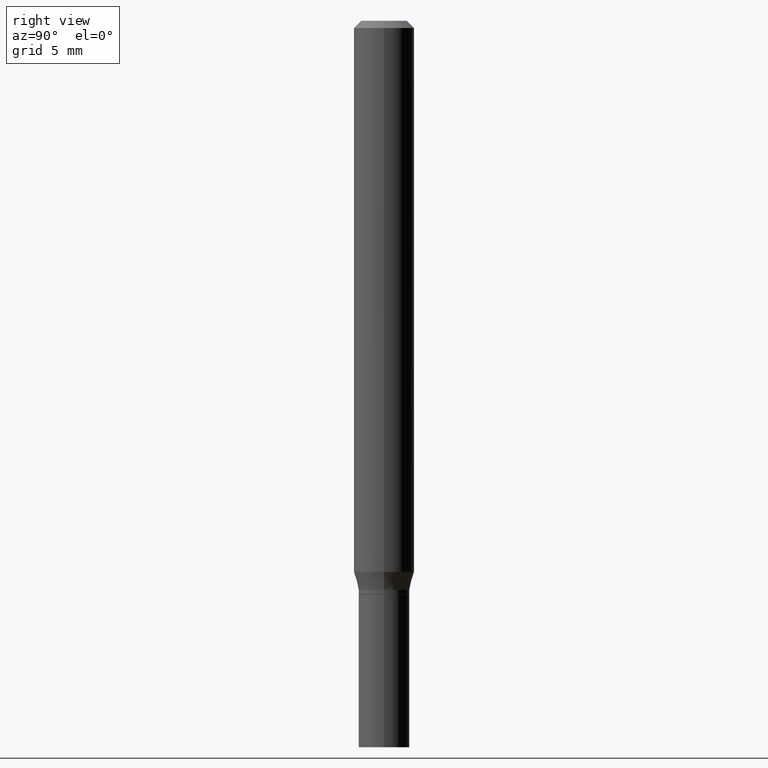
[diagram: clean part render]
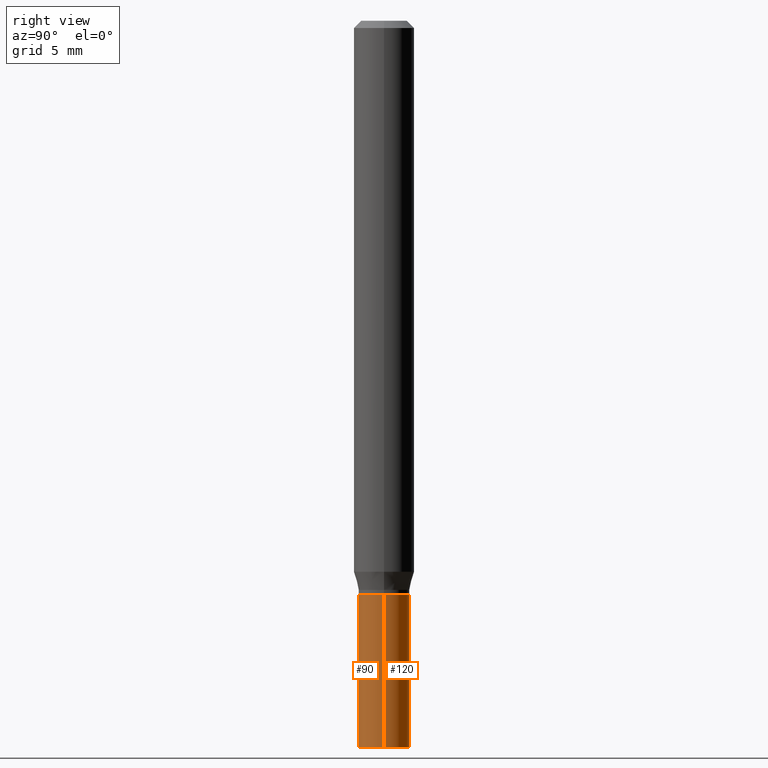
[diagram: same view with one multi-face feature highlighted, each face labeled with its STEP entity id]
A machine part, right view. The highlighted faces form ONE feature: a constant-radius fillet chain: 2 tangent blend faces with common blend radius 1.3335 mm. The faces share edges in the B-rep.
Their STEP definitions:
[1] entity #120 (Cylinder):
#2 = LINE ( 'NONE', #41, #443 ) ;
#15 = VERTEX_POINT ( 'NONE', #204 ) ;
#21 = CARTESIAN_POINT ( 'NONE',  ( 0.05249999999999999806, -5.603827548843247337E-15, -1.500000000000000222 ) ) ;
#23 = VERTEX_POINT ( 'NONE', #21 ) ;
#41 = CARTESIAN_POINT ( 'NONE',  ( -0.05249999999999999806, 3.730349362740525838E-16, -2.582440922383825311E-30 ) ) ;
#56 = VERTEX_POINT ( 'NONE', #171 ) ;
#64 = CARTESIAN_POINT ( 'NONE',  ( 0.000000000000000000, 0.000000000000000000, 0.000000000000000000 ) ) ;
#65 = DIRECTION ( 'NONE',  ( 1.000000000000000000, -6.982962677686268288E-15, 0.000000000000000000 ) ) ;
#66 = CARTESIAN_POINT ( 'NONE',  ( 0.05249999999999999806, -3.666055405785289629E-16, 2.559992807292866011E-30 ) ) ;
#89 = EDGE_CURVE ( 'NONE', #23, #15, #359, .T. ) ;
#92 = EDGE_CURVE ( 'NONE', #113, #56, #2, .T. ) ;
#98 = CARTESIAN_POINT ( 'NONE',  ( -0.05249999999999999806, -4.314278761122870719E-15, -1.500000000000000222 ) ) ;
#113 = VERTEX_POINT ( 'NONE', #98 ) ;
#114 = ORIENTED_EDGE ( 'NONE', *, *, #89, .F. ) ;
#120 = ADVANCED_FACE ( 'NONE', ( #217 ), #398, .T. ) ;
#122 = ORIENTED_EDGE ( 'NONE', *, *, #394, .F. ) ;
#134 = CARTESIAN_POINT ( 'NONE',  ( 2.897880535329387383E-29, -4.137405386529128330E-15, -1.185000000000000275 ) ) ;
#136 = CARTESIAN_POINT ( 'NONE',  ( 3.668203209277704895E-29, -5.237222008264718177E-15, -1.500000000000000222 ) ) ;
#146 = CIRCLE ( 'NONE', #352, 0.05249999999999999806 ) ;
#171 = CARTESIAN_POINT ( 'NONE',  ( -0.05249999999999999806, -4.314278761122870719E-15, -1.185000000000000275 ) ) ;
#188 = EDGE_LOOP ( 'NONE', ( #194, #372, #122, #114 ) ) ;
#194 = ORIENTED_EDGE ( 'NONE', *, *, #235, .T. ) ;
#204 = CARTESIAN_POINT ( 'NONE',  ( 0.05249999999999999806, -4.504010927107657490E-15, -1.185000000000000275 ) ) ;
#212 = DIRECTION ( 'NONE',  ( -2.445468806185136877E-29, 3.491481338843145188E-15, 1.000000000000000000 ) ) ;
#217 = FACE_OUTER_BOUND ( 'NONE', #188, .T. ) ;
#220 = DIRECTION ( 'NONE',  ( -2.445468806185136877E-29, 3.491481338843145188E-15, 1.000000000000000000 ) ) ;
#235 = EDGE_CURVE ( 'NONE', #23, #113, #146, .T. ) ;
#259 = DIRECTION ( 'NONE',  ( 1.000000000000000000, -6.982962677686268288E-15, 0.000000000000000000 ) ) ;
#279 = DIRECTION ( 'NONE',  ( -2.445468806185136597E-29, 3.491481338843145583E-15, 1.000000000000000000 ) ) ;
#286 = DIRECTION ( 'NONE',  ( -2.445468806185136597E-29, 3.491481338843145583E-15, 1.000000000000000000 ) ) ;
#350 = AXIS2_PLACEMENT_3D ( 'NONE', #64, #356, #432 ) ;
#352 = AXIS2_PLACEMENT_3D ( 'NONE', #136, #286, #259 ) ;
#356 = DIRECTION ( 'NONE',  ( -2.445468806185136597E-29, 3.491481338843145583E-15, 1.000000000000000000 ) ) ;
#359 = LINE ( 'NONE', #66, #365 ) ;
#365 = VECTOR ( 'NONE', #220, 39.37007874015748143 ) ;
#372 = ORIENTED_EDGE ( 'NONE', *, *, #92, .T. ) ;
#388 = CIRCLE ( 'NONE', #458, 0.05249999999999999806 ) ;
#394 = EDGE_CURVE ( 'NONE', #15, #56, #388, .T. ) ;
#398 = CYLINDRICAL_SURFACE ( 'NONE', #350, 0.05249999999999999806 ) ;
#432 = DIRECTION ( 'NONE',  ( 1.000000000000000000, -6.982962677686265922E-15, 4.876176775795935232E-29 ) ) ;
#443 = VECTOR ( 'NONE', #212, 39.37007874015748143 ) ;
#458 = AXIS2_PLACEMENT_3D ( 'NONE', #134, #279, #65 ) ;
[2] entity #90 (Cylinder):
#2 = LINE ( 'NONE', #41, #443 ) ;
#6 = FACE_OUTER_BOUND ( 'NONE', #412, .T. ) ;
#15 = VERTEX_POINT ( 'NONE', #204 ) ;
#16 = ORIENTED_EDGE ( 'NONE', *, *, #150, .T. ) ;
#21 = CARTESIAN_POINT ( 'NONE',  ( 0.05249999999999999806, -5.603827548843247337E-15, -1.500000000000000222 ) ) ;
#23 = VERTEX_POINT ( 'NONE', #21 ) ;
#31 = DIRECTION ( 'NONE',  ( 1.000000000000000000, -6.982962677686265922E-15, 4.876176775795935232E-29 ) ) ;
#41 = CARTESIAN_POINT ( 'NONE',  ( -0.05249999999999999806, 3.730349362740525838E-16, -2.582440922383825311E-30 ) ) ;
#56 = VERTEX_POINT ( 'NONE', #171 ) ;
#66 = CARTESIAN_POINT ( 'NONE',  ( 0.05249999999999999806, -3.666055405785289629E-16, 2.559992807292866011E-30 ) ) ;
#89 = EDGE_CURVE ( 'NONE', #23, #15, #359, .T. ) ;
#90 = ADVANCED_FACE ( 'NONE', ( #6 ), #351, .T. ) ;
#92 = EDGE_CURVE ( 'NONE', #113, #56, #2, .T. ) ;
#98 = CARTESIAN_POINT ( 'NONE',  ( -0.05249999999999999806, -4.314278761122870719E-15, -1.500000000000000222 ) ) ;
#101 = CARTESIAN_POINT ( 'NONE',  ( 0.000000000000000000, 0.000000000000000000, 0.000000000000000000 ) ) ;
#113 = VERTEX_POINT ( 'NONE', #98 ) ;
#133 = DIRECTION ( 'NONE',  ( -2.445468806185136597E-29, 3.491481338843145583E-15, 1.000000000000000000 ) ) ;
#140 = ORIENTED_EDGE ( 'NONE', *, *, #92, .F. ) ;
#150 = EDGE_CURVE ( 'NONE', #113, #23, #407, .T. ) ;
#171 = CARTESIAN_POINT ( 'NONE',  ( -0.05249999999999999806, -4.314278761122870719E-15, -1.185000000000000275 ) ) ;
#198 = AXIS2_PLACEMENT_3D ( 'NONE', #315, #133, #435 ) ;
#204 = CARTESIAN_POINT ( 'NONE',  ( 0.05249999999999999806, -4.504010927107657490E-15, -1.185000000000000275 ) ) ;
#212 = DIRECTION ( 'NONE',  ( -2.445468806185136877E-29, 3.491481338843145188E-15, 1.000000000000000000 ) ) ;
#213 = AXIS2_PLACEMENT_3D ( 'NONE', #294, #405, #230 ) ;
#220 = DIRECTION ( 'NONE',  ( -2.445468806185136877E-29, 3.491481338843145188E-15, 1.000000000000000000 ) ) ;
#230 = DIRECTION ( 'NONE',  ( 1.000000000000000000, -6.982962677686268288E-15, 0.000000000000000000 ) ) ;
#265 = EDGE_CURVE ( 'NONE', #56, #15, #337, .T. ) ;
#276 = AXIS2_PLACEMENT_3D ( 'NONE', #101, #459, #31 ) ;
#288 = ORIENTED_EDGE ( 'NONE', *, *, #89, .T. ) ;
#294 = CARTESIAN_POINT ( 'NONE',  ( 2.897880535329387383E-29, -4.137405386529128330E-15, -1.185000000000000275 ) ) ;
#315 = CARTESIAN_POINT ( 'NONE',  ( 3.668203209277704895E-29, -5.237222008264718177E-15, -1.500000000000000222 ) ) ;
#331 = ORIENTED_EDGE ( 'NONE', *, *, #265, .F. ) ;
#337 = CIRCLE ( 'NONE', #213, 0.05249999999999999806 ) ;
#351 = CYLINDRICAL_SURFACE ( 'NONE', #276, 0.05249999999999999806 ) ;
#359 = LINE ( 'NONE', #66, #365 ) ;
#365 = VECTOR ( 'NONE', #220, 39.37007874015748143 ) ;
#405 = DIRECTION ( 'NONE',  ( -2.445468806185136597E-29, 3.491481338843145583E-15, 1.000000000000000000 ) ) ;
#407 = CIRCLE ( 'NONE', #198, 0.05249999999999999806 ) ;
#412 = EDGE_LOOP ( 'NONE', ( #140, #16, #288, #331 ) ) ;
#435 = DIRECTION ( 'NONE',  ( 1.000000000000000000, -6.982962677686268288E-15, 0.000000000000000000 ) ) ;
#443 = VECTOR ( 'NONE', #212, 39.37007874015748143 ) ;
#459 = DIRECTION ( 'NONE',  ( -2.445468806185136597E-29, 3.491481338843145583E-15, 1.000000000000000000 ) ) ;